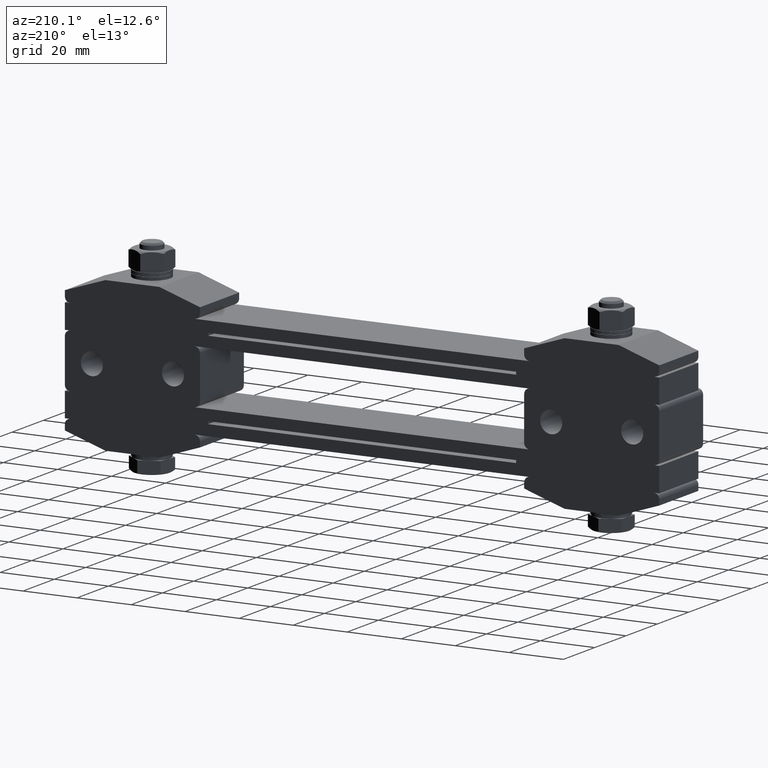
[diagram: clean part render]
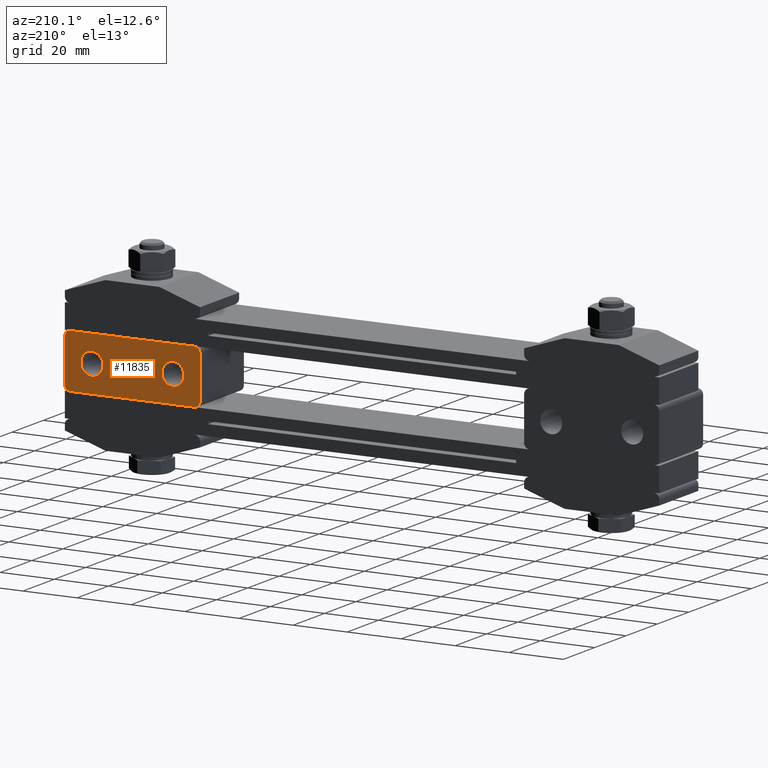
[diagram: same view with one face highlighted and labeled with its STEP entity id]
A machine part, auxiliary view. The second image highlights one B-rep face of the part: STEP entity #11835.
In plain terms, the highlighted planar face has unit normal (0, -1, 0).
Its self-contained STEP definition (entity closure, byte-faithful):
#285 = DIRECTION ( 'NONE',  ( -0.0000000000000000000, 1.000000000000000000, -0.0000000000000000000 ) ) ;
#372 = CARTESIAN_POINT ( 'NONE',  ( 60.00000000000000000, 12.50000000000000000, 22.00000000000000000 ) ) ;
#408 = PLANE ( 'NONE',  #1083 ) ;
#483 = CARTESIAN_POINT ( 'NONE',  ( 60.00000000000000000, 12.50000000000000000, 24.00000000000000000 ) ) ;
#742 = ORIENTED_EDGE ( 'NONE', *, *, #4568, .F. ) ;
#1047 = AXIS2_PLACEMENT_3D ( 'NONE', #3682, #15861, #10846 ) ;
#1083 = AXIS2_PLACEMENT_3D ( 'NONE', #483, #14373, #18101 ) ;
#1368 = VECTOR ( 'NONE', #11584, 1000.000000000000000 ) ;
#1492 = VERTEX_POINT ( 'NONE', #372 ) ;
#1639 = CARTESIAN_POINT ( 'NONE',  ( 70.00000000000000000, 12.50000000000000000, 18.10000000000000100 ) ) ;
#1862 = CARTESIAN_POINT ( 'NONE',  ( 110.0000000000000000, 12.50000000000000000, 22.00000000000000000 ) ) ;
#2035 = DIRECTION ( 'NONE',  ( 0.0000000000000000000, 1.000000000000000000, 0.0000000000000000000 ) ) ;
#2512 = DIRECTION ( 'NONE',  ( -0.0000000000000000000, 1.000000000000000000, -0.0000000000000000000 ) ) ;
#2591 = FACE_BOUND ( 'NONE', #5173, .T. ) ;
#2705 = VERTEX_POINT ( 'NONE', #14350 ) ;
#3188 = CIRCLE ( 'NONE', #12262, 4.100000000000001400 ) ;
#3490 = CIRCLE ( 'NONE', #14713, 2.000000000000001800 ) ;
#3682 = CARTESIAN_POINT ( 'NONE',  ( 70.00000000000000000, 12.50000000000000000, 14.00000000000000000 ) ) ;
#3746 = CARTESIAN_POINT ( 'NONE',  ( 70.00000000000000000, 12.50000000000000000, 9.899999999999998600 ) ) ;
#3757 = ORIENTED_EDGE ( 'NONE', *, *, #16219, .T. ) ;
#4090 = EDGE_CURVE ( 'NONE', #1492, #17016, #12360, .T. ) ;
#4160 = ORIENTED_EDGE ( 'NONE', *, *, #16843, .T. ) ;
#4202 = EDGE_LOOP ( 'NONE', ( #18525, #3757, #13288, #14662, #4695, #8220, #21611, #4160 ) ) ;
#4391 = EDGE_CURVE ( 'NONE', #11106, #5724, #10689, .T. ) ;
#4568 = EDGE_CURVE ( 'NONE', #12278, #11963, #3188, .T. ) ;
#4695 = ORIENTED_EDGE ( 'NONE', *, *, #4090, .F. ) ;
#4839 = CIRCLE ( 'NONE', #6454, 2.000000000000001800 ) ;
#5173 = EDGE_LOOP ( 'NONE', ( #13032, #21260 ) ) ;
#5357 = VERTEX_POINT ( 'NONE', #17325 ) ;
#5724 = VERTEX_POINT ( 'NONE', #10511 ) ;
#5821 = CARTESIAN_POINT ( 'NONE',  ( 108.0000000000000000, 12.50000000000000000, 6.000000000000000000 ) ) ;
#6080 = LINE ( 'NONE', #16845, #1368 ) ;
#6103 = CARTESIAN_POINT ( 'NONE',  ( 100.0000000000000000, 12.50000000000000000, 14.00000000000000000 ) ) ;
#6454 = AXIS2_PLACEMENT_3D ( 'NONE', #15115, #13325, #16867 ) ;
#7434 = EDGE_CURVE ( 'NONE', #5357, #17016, #20861, .T. ) ;
#7544 = FACE_OUTER_BOUND ( 'NONE', #4202, .T. ) ;
#7589 = DIRECTION ( 'NONE',  ( 0.0000000000000000000, 1.000000000000000000, 0.0000000000000000000 ) ) ;
#7811 = CIRCLE ( 'NONE', #15778, 4.100000000000001400 ) ;
#8007 = CARTESIAN_POINT ( 'NONE',  ( 100.0000000000000000, 12.50000000000000000, 9.899999999999998600 ) ) ;
#8220 = ORIENTED_EDGE ( 'NONE', *, *, #16981, .T. ) ;
#9371 = CARTESIAN_POINT ( 'NONE',  ( 60.00000000000000000, 12.50000000000000000, 4.000000000000000000 ) ) ;
#9712 = DIRECTION ( 'NONE',  ( 0.0000000000000000000, 1.000000000000000000, 0.0000000000000000000 ) ) ;
#9713 = LINE ( 'NONE', #9371, #17157 ) ;
#10023 = EDGE_CURVE ( 'NONE', #11963, #12278, #18141, .T. ) ;
#10382 = CARTESIAN_POINT ( 'NONE',  ( 108.0000000000000000, 12.50000000000000000, 4.000000000000000000 ) ) ;
#10511 = CARTESIAN_POINT ( 'NONE',  ( 110.0000000000000000, 12.50000000000000000, 6.000000000000000000 ) ) ;
#10689 = LINE ( 'NONE', #13985, #11500 ) ;
#10846 = DIRECTION ( 'NONE',  ( 0.0000000000000000000, 0.0000000000000000000, 1.000000000000000000 ) ) ;
#10867 = CARTESIAN_POINT ( 'NONE',  ( 108.0000000000000000, 12.50000000000000000, 22.00000000000000000 ) ) ;
#11106 = VERTEX_POINT ( 'NONE', #1862 ) ;
#11449 = CIRCLE ( 'NONE', #11582, 4.100000000000001400 ) ;
#11500 = VECTOR ( 'NONE', #17613, 1000.000000000000000 ) ;
#11582 = AXIS2_PLACEMENT_3D ( 'NONE', #6103, #9712, #18445 ) ;
#11584 = DIRECTION ( 'NONE',  ( -1.000000000000000000, 0.0000000000000000000, 0.0000000000000000000 ) ) ;
#11835 = ADVANCED_FACE ( 'NONE', ( #20238, #2591, #7544 ), #408, .F. ) ;
#11963 = VERTEX_POINT ( 'NONE', #3746 ) ;
#12114 = CARTESIAN_POINT ( 'NONE',  ( 100.0000000000000000, 12.50000000000000000, 18.10000000000000100 ) ) ;
#12143 = CARTESIAN_POINT ( 'NONE',  ( 60.00000000000000000, 12.50000000000000000, 6.000000000000000000 ) ) ;
#12262 = AXIS2_PLACEMENT_3D ( 'NONE', #19838, #2035, #21731 ) ;
#12265 = AXIS2_PLACEMENT_3D ( 'NONE', #5821, #21884, #13049 ) ;
#12278 = VERTEX_POINT ( 'NONE', #1639 ) ;
#12360 = LINE ( 'NONE', #21457, #14042 ) ;
#12987 = EDGE_LOOP ( 'NONE', ( #742, #13626 ) ) ;
#13032 = ORIENTED_EDGE ( 'NONE', *, *, #16904, .F. ) ;
#13049 = DIRECTION ( 'NONE',  ( 0.0000000000000000000, 0.0000000000000000000, -1.000000000000000000 ) ) ;
#13288 = ORIENTED_EDGE ( 'NONE', *, *, #18885, .T. ) ;
#13325 = DIRECTION ( 'NONE',  ( -0.0000000000000000000, 1.000000000000000000, -0.0000000000000000000 ) ) ;
#13626 = ORIENTED_EDGE ( 'NONE', *, *, #10023, .F. ) ;
#13817 = AXIS2_PLACEMENT_3D ( 'NONE', #20014, #2512, #20159 ) ;
#13985 = CARTESIAN_POINT ( 'NONE',  ( 110.0000000000000000, 12.50000000000000000, 24.00000000000000000 ) ) ;
#14042 = VECTOR ( 'NONE', #19429, 1000.000000000000000 ) ;
#14350 = CARTESIAN_POINT ( 'NONE',  ( 62.00000000000000000, 12.50000000000000000, 24.00000000000000000 ) ) ;
#14373 = DIRECTION ( 'NONE',  ( 0.0000000000000000000, -1.000000000000000000, 0.0000000000000000000 ) ) ;
#14584 = CARTESIAN_POINT ( 'NONE',  ( 108.0000000000000000, 12.50000000000000000, 24.00000000000000000 ) ) ;
#14662 = ORIENTED_EDGE ( 'NONE', *, *, #7434, .T. ) ;
#14713 = AXIS2_PLACEMENT_3D ( 'NONE', #10867, #285, #21782 ) ;
#14738 = DIRECTION ( 'NONE',  ( -1.000000000000000000, 0.0000000000000000000, 0.0000000000000000000 ) ) ;
#15115 = CARTESIAN_POINT ( 'NONE',  ( 62.00000000000000000, 12.50000000000000000, 22.00000000000000000 ) ) ;
#15130 = EDGE_CURVE ( 'NONE', #18810, #2705, #6080, .T. ) ;
#15271 = VERTEX_POINT ( 'NONE', #12114 ) ;
#15778 = AXIS2_PLACEMENT_3D ( 'NONE', #18150, #7589, #19908 ) ;
#15861 = DIRECTION ( 'NONE',  ( 0.0000000000000000000, 1.000000000000000000, 0.0000000000000000000 ) ) ;
#16219 = EDGE_CURVE ( 'NONE', #5724, #21765, #17296, .T. ) ;
#16843 = EDGE_CURVE ( 'NONE', #18810, #11106, #3490, .T. ) ;
#16845 = CARTESIAN_POINT ( 'NONE',  ( 60.00000000000000000, 12.50000000000000000, 24.00000000000000000 ) ) ;
#16867 = DIRECTION ( 'NONE',  ( 0.0000000000000000000, 0.0000000000000000000, -1.000000000000000000 ) ) ;
#16904 = EDGE_CURVE ( 'NONE', #15271, #22081, #11449, .T. ) ;
#16981 = EDGE_CURVE ( 'NONE', #1492, #2705, #4839, .T. ) ;
#17016 = VERTEX_POINT ( 'NONE', #12143 ) ;
#17157 = VECTOR ( 'NONE', #14738, 1000.000000000000000 ) ;
#17296 = CIRCLE ( 'NONE', #12265, 2.000000000000000000 ) ;
#17325 = CARTESIAN_POINT ( 'NONE',  ( 62.00000000000000000, 12.50000000000000000, 4.000000000000000000 ) ) ;
#17613 = DIRECTION ( 'NONE',  ( 0.0000000000000000000, 0.0000000000000000000, -1.000000000000000000 ) ) ;
#18101 = DIRECTION ( 'NONE',  ( 0.0000000000000000000, 0.0000000000000000000, -1.000000000000000000 ) ) ;
#18141 = CIRCLE ( 'NONE', #1047, 4.100000000000001400 ) ;
#18150 = CARTESIAN_POINT ( 'NONE',  ( 100.0000000000000000, 12.50000000000000000, 14.00000000000000000 ) ) ;
#18445 = DIRECTION ( 'NONE',  ( 0.0000000000000000000, 0.0000000000000000000, 1.000000000000000000 ) ) ;
#18525 = ORIENTED_EDGE ( 'NONE', *, *, #4391, .T. ) ;
#18810 = VERTEX_POINT ( 'NONE', #14584 ) ;
#18853 = EDGE_CURVE ( 'NONE', #22081, #15271, #7811, .T. ) ;
#18885 = EDGE_CURVE ( 'NONE', #21765, #5357, #9713, .T. ) ;
#19429 = DIRECTION ( 'NONE',  ( 0.0000000000000000000, 0.0000000000000000000, -1.000000000000000000 ) ) ;
#19838 = CARTESIAN_POINT ( 'NONE',  ( 70.00000000000000000, 12.50000000000000000, 14.00000000000000000 ) ) ;
#19908 = DIRECTION ( 'NONE',  ( 0.0000000000000000000, 0.0000000000000000000, 1.000000000000000000 ) ) ;
#20014 = CARTESIAN_POINT ( 'NONE',  ( 62.00000000000000000, 12.50000000000000000, 6.000000000000000000 ) ) ;
#20159 = DIRECTION ( 'NONE',  ( 0.0000000000000000000, 0.0000000000000000000, -1.000000000000000000 ) ) ;
#20238 = FACE_BOUND ( 'NONE', #12987, .T. ) ;
#20861 = CIRCLE ( 'NONE', #13817, 2.000000000000000000 ) ;
#21260 = ORIENTED_EDGE ( 'NONE', *, *, #18853, .F. ) ;
#21457 = CARTESIAN_POINT ( 'NONE',  ( 60.00000000000000000, 12.50000000000000000, 24.00000000000000000 ) ) ;
#21611 = ORIENTED_EDGE ( 'NONE', *, *, #15130, .F. ) ;
#21731 = DIRECTION ( 'NONE',  ( 0.0000000000000000000, 0.0000000000000000000, 1.000000000000000000 ) ) ;
#21765 = VERTEX_POINT ( 'NONE', #10382 ) ;
#21782 = DIRECTION ( 'NONE',  ( 0.0000000000000000000, 0.0000000000000000000, -1.000000000000000000 ) ) ;
#21884 = DIRECTION ( 'NONE',  ( -0.0000000000000000000, 1.000000000000000000, -0.0000000000000000000 ) ) ;
#22081 = VERTEX_POINT ( 'NONE', #8007 ) ;